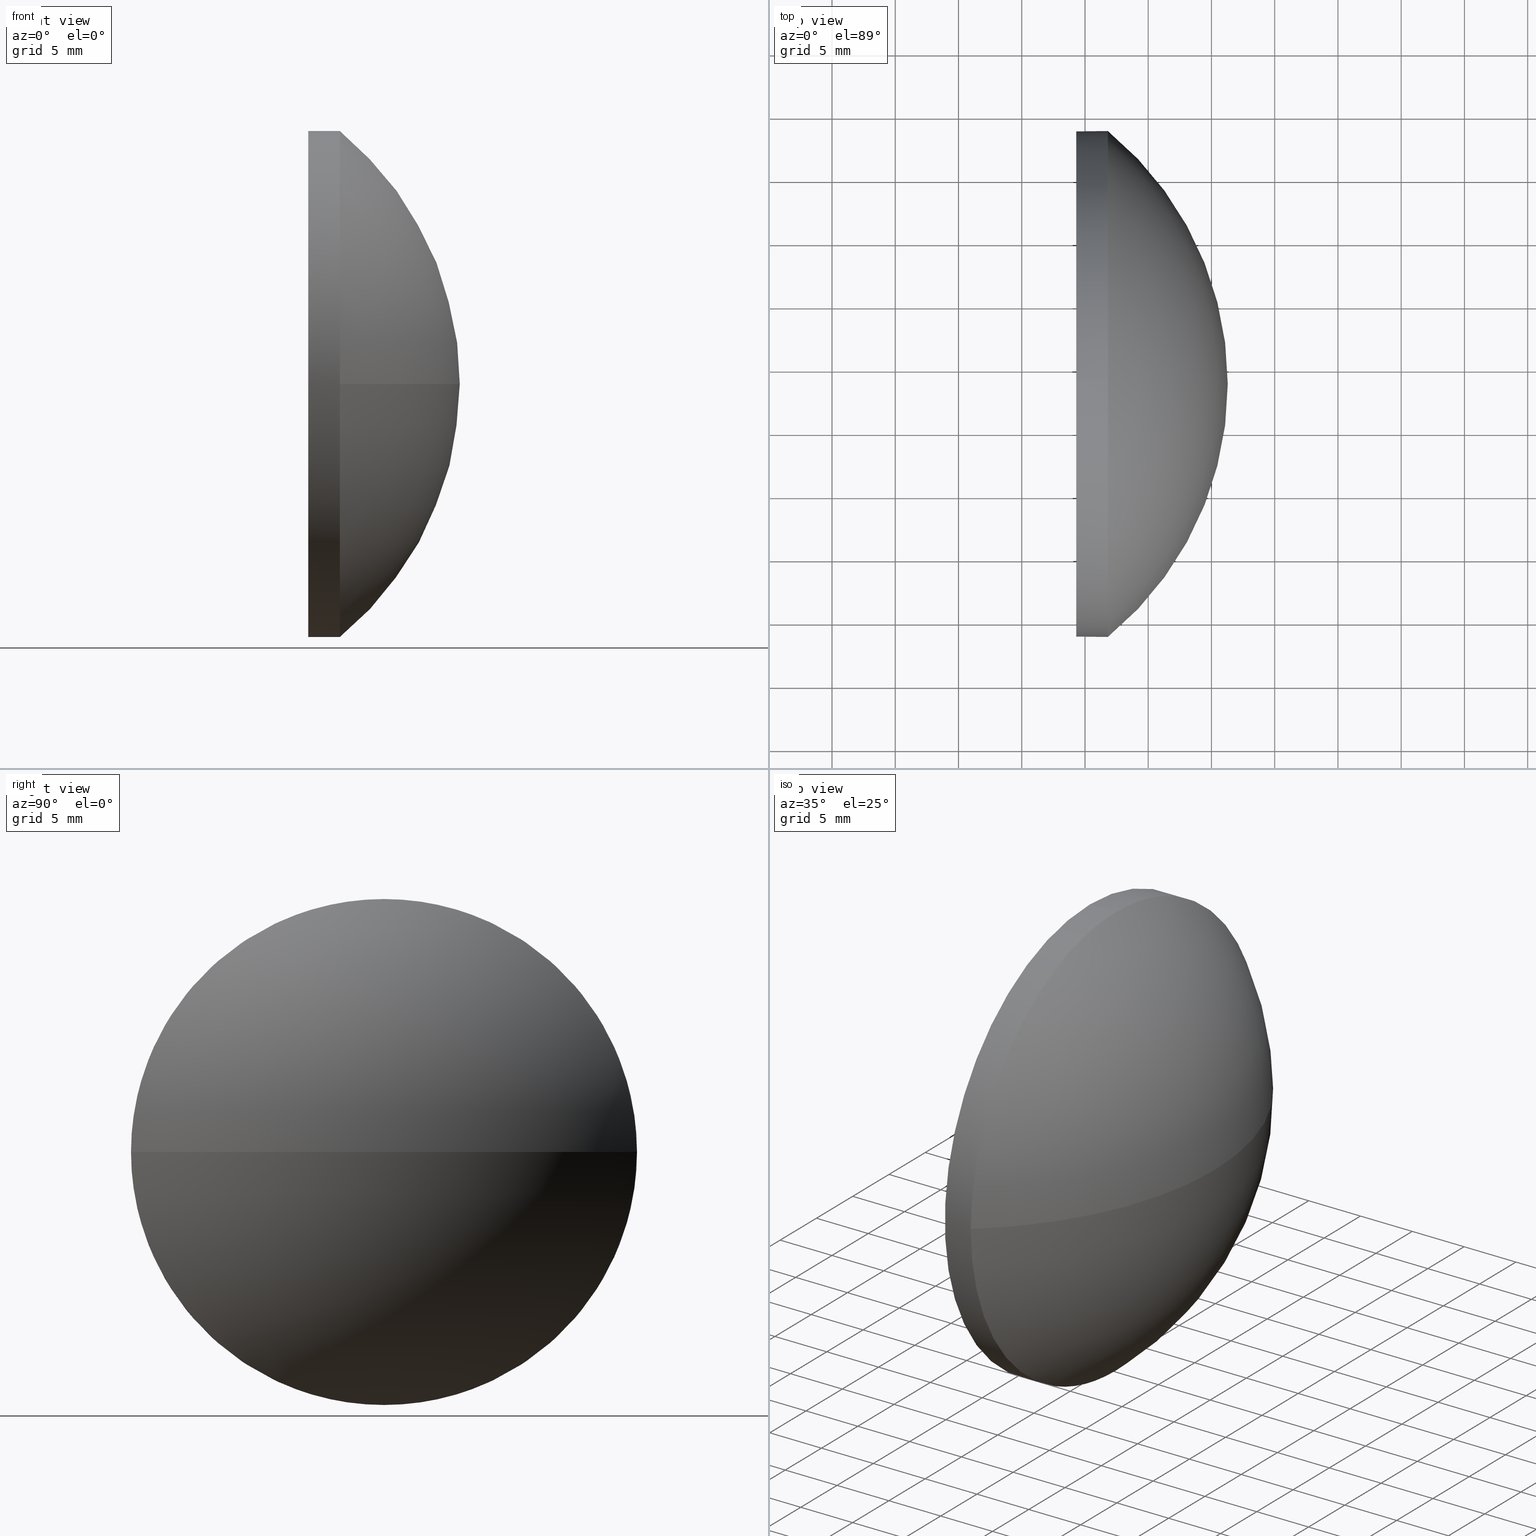
[diagram: canonical four-view strip — front | top / right | iso, engineering-drawing reading convention]
A machine part, canonical four-view strip (front | top / right | iso — engineering-drawing reading convention). The complete STEP part file that produces these views, byte-faithful:
ISO-10303-21;
HEADER;
FILE_DESCRIPTION (( 'STEP AP214' ),
    '1' );
FILE_NAME ('100055.STEP',
    '2019-04-30T01:54:38',
    ( '' ),
    ( '' ),
    'SwSTEP 2.0',
    'SolidWorks 2016',
    '' );
FILE_SCHEMA (( 'AUTOMOTIVE_DESIGN' ));
ENDSEC;

DATA;
#1 = LINE ( 'NONE', #100, #52 ) ;
#2 = CIRCLE ( 'NONE', #162, 20.00000000000000400 ) ;
#3 = PRODUCT ( '100055', '100055', '', ( #127 ) ) ;
#4 = MECHANICAL_DESIGN_GEOMETRIC_PRESENTATION_REPRESENTATION (  '', ( #172 ), #102 ) ;
#5 = CIRCLE ( 'NONE', #155, 20.00000000000000400 ) ;
#6 = VERTEX_POINT ( 'NONE', #110 ) ;
#7 =( GEOMETRIC_REPRESENTATION_CONTEXT ( 3 ) GLOBAL_UNCERTAINTY_ASSIGNED_CONTEXT ( ( #151 ) ) GLOBAL_UNIT_ASSIGNED_CONTEXT ( ( #42, #156, #37 ) ) REPRESENTATION_CONTEXT ( 'NONE', 'WORKASPACE' ) );
#8 = EDGE_CURVE ( 'NONE', #20, #178, #69, .T. ) ;
#9 = DIRECTION ( 'NONE',  ( -1.000000000000000000, -0.0000000000000000000, -0.0000000000000000000 ) ) ;
#10 = DIRECTION ( 'NONE',  ( 0.0000000000000000000, 0.0000000000000000000, 1.000000000000000000 ) ) ;
#11 = DIRECTION ( 'NONE',  ( -1.000000000000000000, -0.0000000000000000000, -0.0000000000000000000 ) ) ;
#12 = PRESENTATION_STYLE_ASSIGNMENT (( #59 ) ) ;
#13 = VERTEX_POINT ( 'NONE', #36 ) ;
#14 = APPLICATION_CONTEXT ( 'automotive_design' ) ;
#15 = APPLICATION_PROTOCOL_DEFINITION ( 'draft international standard', 'automotive_design', 1998, #30 ) ;
#16 = DIRECTION ( 'NONE',  ( 0.0000000000000000000, 1.224646799147353200E-016, -1.000000000000000000 ) ) ;
#17 = ADVANCED_BREP_SHAPE_REPRESENTATION ( '100055', ( #48, #124 ), #7 ) ;
#18 = DIRECTION ( 'NONE',  ( 1.000000000000000000, 0.0000000000000000000, 0.0000000000000000000 ) ) ;
#19 = ORIENTED_EDGE ( 'NONE', *, *, #64, .T. ) ;
#20 = VERTEX_POINT ( 'NONE', #120 ) ;
#21 = EDGE_CURVE ( 'NONE', #180, #6, #107, .T. ) ;
#22 = PRODUCT_RELATED_PRODUCT_CATEGORY ( 'part', '', ( #3 ) ) ;
#23 = ORIENTED_EDGE ( 'NONE', *, *, #143, .T. ) ;
#24 = DIRECTION ( 'NONE',  ( 0.0000000000000000000, 1.000000000000000000, 0.0000000000000000000 ) ) ;
#25 = ORIENTED_EDGE ( 'NONE', *, *, #119, .F. ) ;
#26 = DIRECTION ( 'NONE',  ( -1.000000000000000000, -0.0000000000000000000, -0.0000000000000000000 ) ) ;
#27 = DIRECTION ( 'NONE',  ( 1.000000000000000000, 0.0000000000000000000, 0.0000000000000000000 ) ) ;
#28 = AXIS2_PLACEMENT_3D ( 'NONE', #94, #139, #82 ) ;
#29 = ORIENTED_EDGE ( 'NONE', *, *, #104, .F. ) ;
#30 = APPLICATION_CONTEXT ( 'automotive_design' ) ;
#31 = CARTESIAN_POINT ( 'NONE',  ( 389.3094937531328100, 98.70227120915240000, 0.0000000000000000000 ) ) ;
#32 = ADVANCED_FACE ( 'NONE', ( #71 ), #134, .T. ) ;
#33 = VERTEX_POINT ( 'NONE', #67 ) ;
#34 = ORIENTED_EDGE ( 'NONE', *, *, #8, .T. ) ;
#35 =( GEOMETRIC_REPRESENTATION_CONTEXT ( 3 ) GLOBAL_UNCERTAINTY_ASSIGNED_CONTEXT ( ( #123 ) ) GLOBAL_UNIT_ASSIGNED_CONTEXT ( ( #92, #65, #84 ) ) REPRESENTATION_CONTEXT ( 'NONE', 'WORKASPACE' ) );
#36 = CARTESIAN_POINT ( 'NONE',  ( 391.8094937531328100, 98.70227120915240000, 20.00000000000000400 ) ) ;
#37 =( NAMED_UNIT ( * ) SI_UNIT ( $, .STERADIAN. ) SOLID_ANGLE_UNIT ( ) );
#38 = APPLICATION_PROTOCOL_DEFINITION ( 'draft international standard', 'automotive_design', 1998, #14 ) ;
#39 = ORIENTED_EDGE ( 'NONE', *, *, #129, .T. ) ;
#40 = DIRECTION ( 'NONE',  ( -1.000000000000000000, -0.0000000000000000000, -0.0000000000000000000 ) ) ;
#41 = DIRECTION ( 'NONE',  ( -1.000000000000000000, -0.0000000000000000000, -0.0000000000000000000 ) ) ;
#42 =( LENGTH_UNIT ( ) NAMED_UNIT ( * ) SI_UNIT ( .MILLI., .METRE. ) );
#43 = CIRCLE ( 'NONE', #49, 20.00000000000000400 ) ;
#44 = EDGE_CURVE ( 'NONE', #13, #33, #111, .T. ) ;
#45 = ORIENTED_EDGE ( 'NONE', *, *, #143, .F. ) ;
#46 = ADVANCED_FACE ( 'NONE', ( #103 ), #68, .T. ) ;
#47 = AXIS2_PLACEMENT_3D ( 'NONE', #96, #150, #149 ) ;
#48 = MANIFOLD_SOLID_BREP ( '��ת2', #116 ) ;
#49 = AXIS2_PLACEMENT_3D ( 'NONE', #113, #41, #154 ) ;
#50 = SURFACE_STYLE_FILL_AREA ( #73 ) ;
#51 = CARTESIAN_POINT ( 'NONE',  ( 375.4524473396306200, 98.70227120915240000, 0.0000000000000000000 ) ) ;
#52 = VECTOR ( 'NONE', #170, 1000.000000000000000 ) ;
#53 = ORIENTED_EDGE ( 'NONE', *, *, #21, .F. ) ;
#54 =( LENGTH_UNIT ( ) NAMED_UNIT ( * ) SI_UNIT ( .MILLI., .METRE. ) );
#55 = DIRECTION ( 'NONE',  ( 0.0000000000000000000, 0.0000000000000000000, -1.000000000000000000 ) ) ;
#56 = STYLED_ITEM ( 'NONE', ( #122 ), #48 ) ;
#57 = FILL_AREA_STYLE_COLOUR ( '', #63 ) ;
#58 = ORIENTED_EDGE ( 'NONE', *, *, #70, .F. ) ;
#59 = SURFACE_STYLE_USAGE ( .BOTH. , #171 ) ;
#60 = PRODUCT_DEFINITION_SHAPE ( 'NONE', 'NONE',  #118 ) ;
#61 = ADVANCED_FACE ( 'NONE', ( #147 ), #89, .T. ) ;
#62 = AXIS2_PLACEMENT_3D ( 'NONE', #177, #179, #10 ) ;
#63 = COLOUR_RGB ( '',1.000000000000000000, 1.000000000000000000, 1.000000000000000000 ) ;
#64 = EDGE_CURVE ( 'NONE', #6, #20, #137, .T. ) ;
#65 =( NAMED_UNIT ( * ) PLANE_ANGLE_UNIT ( ) SI_UNIT ( $, .RADIAN. ) );
#66 = DIRECTION ( 'NONE',  ( -0.0000000000000000000, 0.0000000000000000000, -1.000000000000000000 ) ) ;
#67 = CARTESIAN_POINT ( 'NONE',  ( 389.3094937531328100, 98.70227120915240000, 20.00000000000000400 ) ) ;
#68 = CYLINDRICAL_SURFACE ( 'NONE', #62, 20.00000000000000400 ) ;
#69 = CIRCLE ( 'NONE', #28, 20.00000000000000400 ) ;
#70 = EDGE_CURVE ( 'NONE', #180, #178, #173, .T. ) ;
#71 = FACE_OUTER_BOUND ( 'NONE', #163, .T. ) ;
#72 = DIRECTION ( 'NONE',  ( 0.0000000000000000000, 1.000000000000000000, 0.0000000000000000000 ) ) ;
#73 = FILL_AREA_STYLE ('',( #57 ) ) ;
#74 = FACE_OUTER_BOUND ( 'NONE', #109, .T. ) ;
#75 = EDGE_LOOP ( 'NONE', ( #45, #34, #39, #148, #145 ) ) ;
#76 = UNCERTAINTY_MEASURE_WITH_UNIT (LENGTH_MEASURE( 1.000000000000000100E-005 ), #54, 'distance_accuracy_value', 'NONE');
#77 = ORIENTED_EDGE ( 'NONE', *, *, #64, .F. ) ;
#78 = AXIS2_PLACEMENT_3D ( 'NONE', #168, #18, #55 ) ;
#79 = ADVANCED_FACE ( 'NONE', ( #146 ), #90, .T. ) ;
#80 = PRESENTATION_LAYER_ASSIGNMENT (  '', '', ( #172 ) ) ;
#81 = DIRECTION ( 'NONE',  ( 1.000000000000000000, 0.0000000000000000000, 0.0000000000000000000 ) ) ;
#82 = DIRECTION ( 'NONE',  ( 0.0000000000000000000, 0.0000000000000000000, 1.000000000000000000 ) ) ;
#83 = SURFACE_SIDE_STYLE ('',( #167 ) ) ;
#84 =( NAMED_UNIT ( * ) SI_UNIT ( $, .STERADIAN. ) SOLID_ANGLE_UNIT ( ) );
#85 = ORIENTED_EDGE ( 'NONE', *, *, #44, .F. ) ;
#86 = DIRECTION ( 'NONE',  ( -1.000000000000000000, -0.0000000000000000000, -0.0000000000000000000 ) ) ;
#87 = CARTESIAN_POINT ( 'NONE',  ( 389.3094937531328100, 98.70227120915240000, -20.00000000000000400 ) ) ;
#88 =( NAMED_UNIT ( * ) PLANE_ANGLE_UNIT ( ) SI_UNIT ( $, .RADIAN. ) );
#89 = SPHERICAL_SURFACE ( 'NONE', #108, 25.83704641350215100 ) ;
#90 = SPHERICAL_SURFACE ( 'NONE', #142, 25.83704641350215100 ) ;
#91 = ORIENTED_EDGE ( 'NONE', *, *, #119, .T. ) ;
#92 =( LENGTH_UNIT ( ) NAMED_UNIT ( * ) SI_UNIT ( .MILLI., .METRE. ) );
#93 = EDGE_CURVE ( 'NONE', #161, #33, #2, .T. ) ;
#94 = CARTESIAN_POINT ( 'NONE',  ( 391.8094937531328100, 98.70227120915240000, 0.0000000000000000000 ) ) ;
#95 = SURFACE_STYLE_USAGE ( .BOTH. , #83 ) ;
#96 = CARTESIAN_POINT ( 'NONE',  ( 379.8029964333595700, 98.70227120915240000, 0.0000000000000000000 ) ) ;
#97 = VECTOR ( 'NONE', #9, 1000.000000000000000 ) ;
#98 = CARTESIAN_POINT ( 'NONE',  ( 389.3094937531328100, 98.70227120915240000, 0.0000000000000000000 ) ) ;
#99 = DIRECTION ( 'NONE',  ( 0.0000000000000000000, 0.0000000000000000000, 1.000000000000000000 ) ) ;
#100 = CARTESIAN_POINT ( 'NONE',  ( 379.8029964333595700, 98.70227120915240000, -20.00000000000000400 ) ) ;
#101 = DIRECTION ( 'NONE',  ( 0.0000000000000000000, 0.0000000000000000000, 1.000000000000000000 ) ) ;
#102 =( GEOMETRIC_REPRESENTATION_CONTEXT ( 3 ) GLOBAL_UNCERTAINTY_ASSIGNED_CONTEXT ( ( #76 ) ) GLOBAL_UNIT_ASSIGNED_CONTEXT ( ( #54, #88, #186 ) ) REPRESENTATION_CONTEXT ( 'NONE', 'WORKASPACE' ) );
#103 = FACE_OUTER_BOUND ( 'NONE', #75, .T. ) ;
#104 = EDGE_CURVE ( 'NONE', #13, #6, #5, .T. ) ;
#105 = ORIENTED_EDGE ( 'NONE', *, *, #21, .T. ) ;
#106 = AXIS2_PLACEMENT_3D ( 'NONE', #141, #16, #157 ) ;
#107 = CIRCLE ( 'NONE', #117, 25.83704641350215100 ) ;
#108 = AXIS2_PLACEMENT_3D ( 'NONE', #51, #66, #24 ) ;
#109 = EDGE_LOOP ( 'NONE', ( #91, #153 ) ) ;
#110 = CARTESIAN_POINT ( 'NONE',  ( 391.8094937531328100, 118.7022712091524100, 0.0000000000000000000 ) ) ;
#111 = LINE ( 'NONE', #165, #97 ) ;
#112 = DIRECTION ( 'NONE',  ( -0.0000000000000000000, 0.0000000000000000000, -1.000000000000000000 ) ) ;
#113 = CARTESIAN_POINT ( 'NONE',  ( 391.8094937531328100, 98.70227120915240000, 0.0000000000000000000 ) ) ;
#114 = CARTESIAN_POINT ( 'NONE',  ( 391.8094937531328100, 98.70227120915240000, 0.0000000000000000000 ) ) ;
#115 = MECHANICAL_DESIGN_GEOMETRIC_PRESENTATION_REPRESENTATION (  '', ( #56 ), #35 ) ;
#116 = CLOSED_SHELL ( 'NONE', ( #32, #61, #79, #46, #160 ) ) ;
#117 = AXIS2_PLACEMENT_3D ( 'NONE', #164, #181, #81 ) ;
#118 = PRODUCT_DEFINITION ( 'δ֪', '', #144, #184 ) ;
#119 = EDGE_CURVE ( 'NONE', #33, #161, #175, .T. ) ;
#120 = CARTESIAN_POINT ( 'NONE',  ( 391.8094937531328100, 98.70227120915240000, -20.00000000000000400 ) ) ;
#121 = FILL_AREA_STYLE ('',( #135 ) ) ;
#122 = PRESENTATION_STYLE_ASSIGNMENT (( #95 ) ) ;
#123 = UNCERTAINTY_MEASURE_WITH_UNIT (LENGTH_MEASURE( 1.000000000000000100E-005 ), #92, 'distance_accuracy_value', 'NONE');
#124 = AXIS2_PLACEMENT_3D ( 'NONE', #158, #166, #27 ) ;
#125 = EDGE_LOOP ( 'NONE', ( #58, #105, #29, #176 ) ) ;
#126 = CARTESIAN_POINT ( 'NONE',  ( 391.8094937531328100, 78.70227120915238600, -2.449293598294707300E-015 ) ) ;
#127 = PRODUCT_CONTEXT ( 'NONE', #30, 'mechanical' ) ;
#128 = PLANE ( 'NONE',  #78 ) ;
#129 = EDGE_CURVE ( 'NONE', #178, #13, #43, .T. ) ;
#130 = ORIENTED_EDGE ( 'NONE', *, *, #70, .T. ) ;
#131 = EDGE_LOOP ( 'NONE', ( #53, #130, #174, #77 ) ) ;
#132 = AXIS2_PLACEMENT_3D ( 'NONE', #140, #40, #99 ) ;
#133 = SHAPE_DEFINITION_REPRESENTATION ( #60, #17 ) ;
#134 = CYLINDRICAL_SURFACE ( 'NONE', #47, 20.00000000000000400 ) ;
#135 = FILL_AREA_STYLE_COLOUR ( '', #138 ) ;
#136 = AXIS2_PLACEMENT_3D ( 'NONE', #98, #26, #101 ) ;
#137 = CIRCLE ( 'NONE', #132, 20.00000000000000400 ) ;
#138 = COLOUR_RGB ( '',1.000000000000000000, 1.000000000000000000, 1.000000000000000000 ) ;
#139 = DIRECTION ( 'NONE',  ( -1.000000000000000000, -0.0000000000000000000, -0.0000000000000000000 ) ) ;
#140 = CARTESIAN_POINT ( 'NONE',  ( 391.8094937531328100, 98.70227120915240000, 0.0000000000000000000 ) ) ;
#141 = CARTESIAN_POINT ( 'NONE',  ( 375.4524473396306200, 98.70227120915240000, 0.0000000000000000000 ) ) ;
#142 = AXIS2_PLACEMENT_3D ( 'NONE', #182, #112, #72 ) ;
#143 = EDGE_CURVE ( 'NONE', #20, #161, #1, .T. ) ;
#144 = PRODUCT_DEFINITION_FORMATION_WITH_SPECIFIED_SOURCE ( '�κ�', '', #3, .NOT_KNOWN. ) ;
#145 = ORIENTED_EDGE ( 'NONE', *, *, #93, .F. ) ;
#146 = FACE_OUTER_BOUND ( 'NONE', #125, .T. ) ;
#147 = FACE_OUTER_BOUND ( 'NONE', #131, .T. ) ;
#148 = ORIENTED_EDGE ( 'NONE', *, *, #44, .T. ) ;
#149 = DIRECTION ( 'NONE',  ( 0.0000000000000000000, 0.0000000000000000000, 1.000000000000000000 ) ) ;
#150 = DIRECTION ( 'NONE',  ( -1.000000000000000000, -0.0000000000000000000, -0.0000000000000000000 ) ) ;
#151 = UNCERTAINTY_MEASURE_WITH_UNIT (LENGTH_MEASURE( 1.000000000000000100E-005 ), #42, 'distance_accuracy_value', 'NONE');
#152 = CARTESIAN_POINT ( 'NONE',  ( 401.2894937531327700, 98.70227120915240000, 0.0000000000000000000 ) ) ;
#153 = ORIENTED_EDGE ( 'NONE', *, *, #93, .T. ) ;
#154 = DIRECTION ( 'NONE',  ( 0.0000000000000000000, 0.0000000000000000000, 1.000000000000000000 ) ) ;
#155 = AXIS2_PLACEMENT_3D ( 'NONE', #114, #86, #183 ) ;
#156 =( NAMED_UNIT ( * ) PLANE_ANGLE_UNIT ( ) SI_UNIT ( $, .RADIAN. ) );
#157 = DIRECTION ( 'NONE',  ( 0.0000000000000000000, 1.000000000000000000, 1.224646799147353200E-016 ) ) ;
#158 = CARTESIAN_POINT ( 'NONE',  ( 0.0000000000000000000, 0.0000000000000000000, 0.0000000000000000000 ) ) ;
#159 = PRESENTATION_LAYER_ASSIGNMENT (  '', '', ( #56 ) ) ;
#160 = ADVANCED_FACE ( 'NONE', ( #74 ), #128, .F. ) ;
#161 = VERTEX_POINT ( 'NONE', #87 ) ;
#162 = AXIS2_PLACEMENT_3D ( 'NONE', #31, #11, #169 ) ;
#163 = EDGE_LOOP ( 'NONE', ( #19, #23, #25, #85, #185 ) ) ;
#164 = CARTESIAN_POINT ( 'NONE',  ( 375.4524473396306200, 98.70227120915240000, 0.0000000000000000000 ) ) ;
#165 = CARTESIAN_POINT ( 'NONE',  ( 379.8029964333595700, 98.70227120915240000, 20.00000000000000400 ) ) ;
#166 = DIRECTION ( 'NONE',  ( 0.0000000000000000000, 0.0000000000000000000, 1.000000000000000000 ) ) ;
#167 = SURFACE_STYLE_FILL_AREA ( #121 ) ;
#168 = CARTESIAN_POINT ( 'NONE',  ( 389.3094937531328100, 98.70227120915240000, 0.0000000000000000000 ) ) ;
#169 = DIRECTION ( 'NONE',  ( 0.0000000000000000000, 0.0000000000000000000, 1.000000000000000000 ) ) ;
#170 = DIRECTION ( 'NONE',  ( -1.000000000000000000, -0.0000000000000000000, -0.0000000000000000000 ) ) ;
#171 = SURFACE_SIDE_STYLE ('',( #50 ) ) ;
#172 = STYLED_ITEM ( 'NONE', ( #12 ), #17 ) ;
#173 = CIRCLE ( 'NONE', #106, 25.83704641350215100 ) ;
#174 = ORIENTED_EDGE ( 'NONE', *, *, #8, .F. ) ;
#175 = CIRCLE ( 'NONE', #136, 20.00000000000000400 ) ;
#176 = ORIENTED_EDGE ( 'NONE', *, *, #129, .F. ) ;
#177 = CARTESIAN_POINT ( 'NONE',  ( 379.8029964333595700, 98.70227120915240000, 0.0000000000000000000 ) ) ;
#178 = VERTEX_POINT ( 'NONE', #126 ) ;
#179 = DIRECTION ( 'NONE',  ( -1.000000000000000000, -0.0000000000000000000, -0.0000000000000000000 ) ) ;
#180 = VERTEX_POINT ( 'NONE', #152 ) ;
#181 = DIRECTION ( 'NONE',  ( -0.0000000000000000000, 0.0000000000000000000, 1.000000000000000000 ) ) ;
#182 = CARTESIAN_POINT ( 'NONE',  ( 375.4524473396306200, 98.70227120915240000, 0.0000000000000000000 ) ) ;
#183 = DIRECTION ( 'NONE',  ( 0.0000000000000000000, 0.0000000000000000000, 1.000000000000000000 ) ) ;
#184 = PRODUCT_DEFINITION_CONTEXT ( 'detailed design', #14, 'design' ) ;
#185 = ORIENTED_EDGE ( 'NONE', *, *, #104, .T. ) ;
#186 =( NAMED_UNIT ( * ) SI_UNIT ( $, .STERADIAN. ) SOLID_ANGLE_UNIT ( ) );
ENDSEC;
END-ISO-10303-21;
